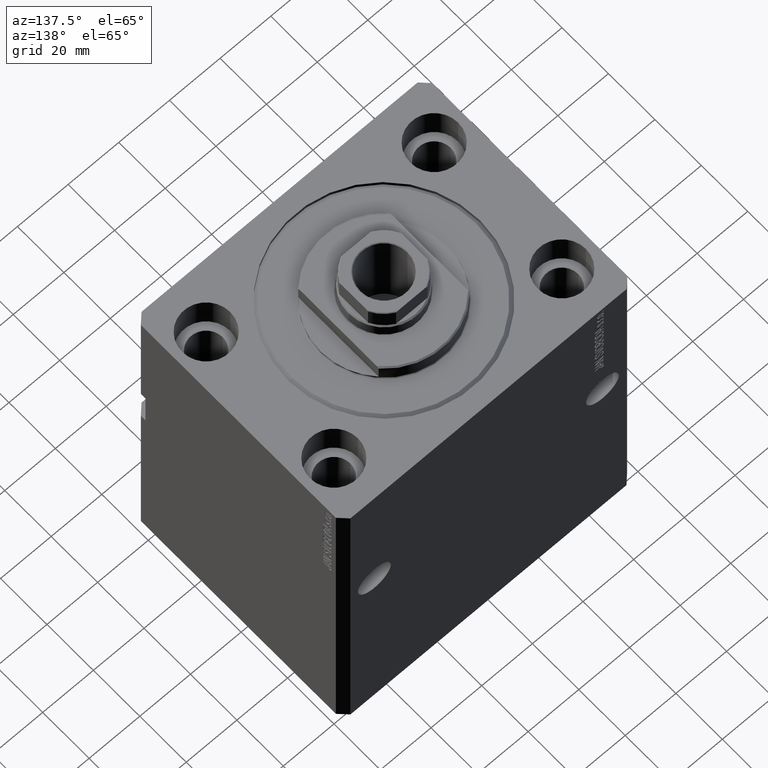
[diagram: clean part render]
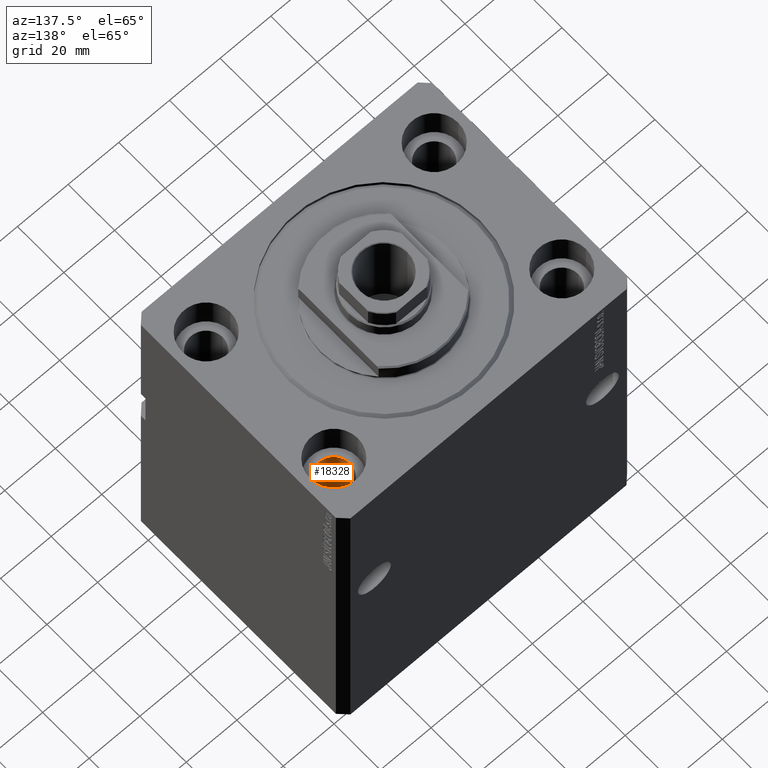
[diagram: same view with one face highlighted and labeled with its STEP entity id]
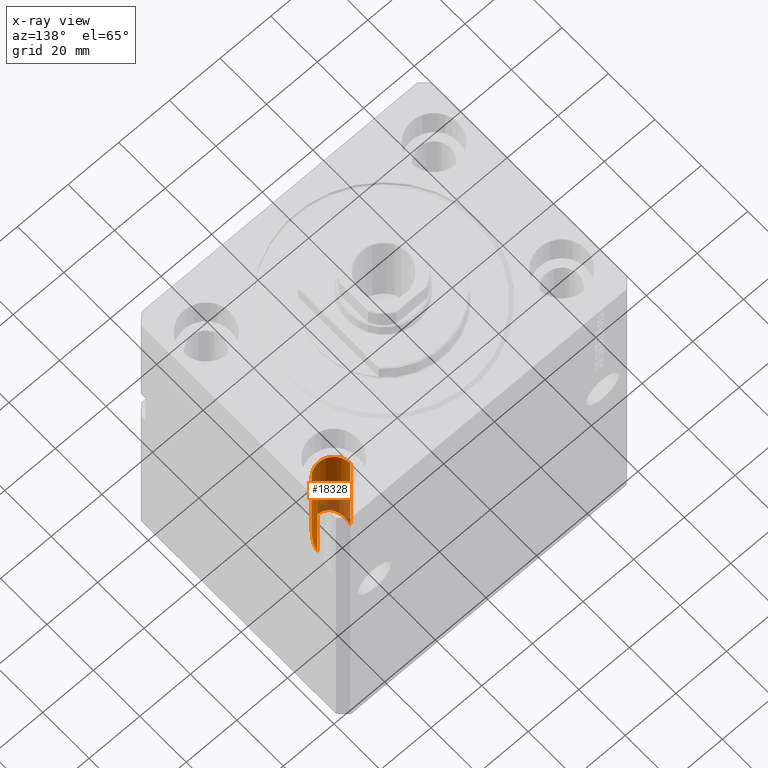
[diagram: x-ray of the same camera — body ghosted, the highlighted face saturated]
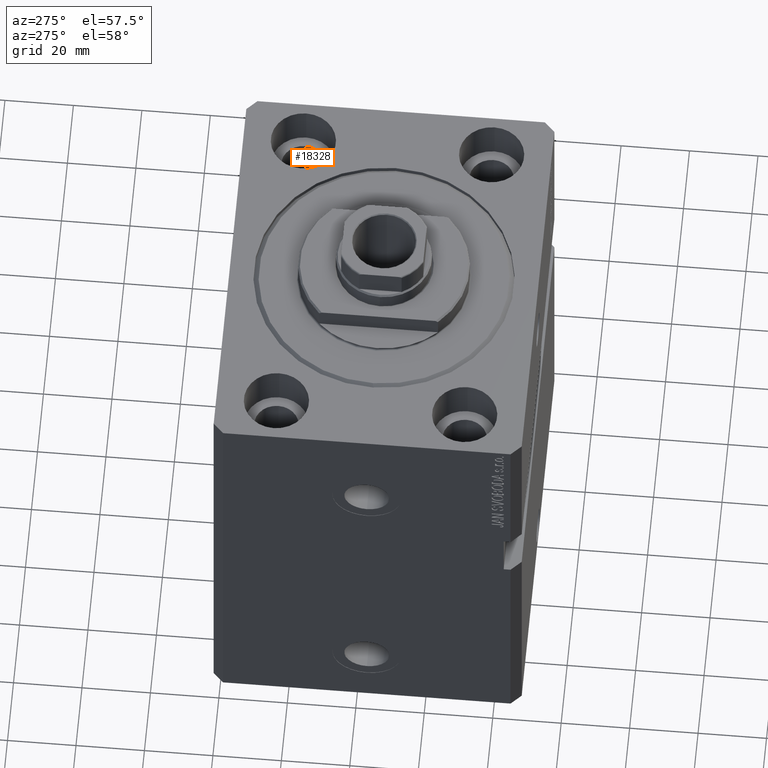
[diagram: same view with one face highlighted and labeled with its STEP entity id]
A machine part, auxiliary view. The second image highlights one B-rep face of the part: STEP entity #18328.
The next image is the same camera in x-ray: the body ghosted, the highlighted face saturated — about 42% of this face is hidden behind the body in this view.
A second angle (auxiliary view) of the same face is appended — the face is thin or edge-on in the first view.
In plain terms, the highlighted cylindrical surface (edge-blend (fillet) strip) has radius 6.5 mm, axis along (0, 0, 1).
Its self-contained STEP definition (entity closure, byte-faithful):
#2039 = DIRECTION ( 'NONE',  ( -0.000000000000000000, -0.000000000000000000, 1.000000000000000000 ) ) ;
#3308 = CARTESIAN_POINT ( 'NONE',  ( 38.50000000000000000, 27.50000000000001776, -54.99999999999999289 ) ) ;
#3741 = DIRECTION ( 'NONE',  ( -0.000000000000000000, -0.000000000000000000, 1.000000000000000000 ) ) ;
#7520 = CARTESIAN_POINT ( 'NONE',  ( 51.50000000000000000, 27.50000000000001776, -13.00000000000000000 ) ) ;
#7680 = CARTESIAN_POINT ( 'NONE',  ( 51.50000000000000000, 27.50000000000001776, -135.0000000000000000 ) ) ;
#9219 = LINE ( 'NONE', #20377, #45666 ) ;
#12907 = ORIENTED_EDGE ( 'NONE', *, *, #15079, .T. ) ;
#13828 = DIRECTION ( 'NONE',  ( 1.000000000000000000, 0.000000000000000000, 0.000000000000000000 ) ) ;
#14435 = CIRCLE ( 'NONE', #45588, 6.499999999999999112 ) ;
#14479 = VECTOR ( 'NONE', #3741, 1000.000000000000000 ) ;
#15079 = EDGE_CURVE ( 'NONE', #41758, #42228, #30329, .T. ) ;
#16613 = CARTESIAN_POINT ( 'NONE',  ( 45.00000000000000000, 27.50000000000001776, -135.0000000000000000 ) ) ;
#17655 = CARTESIAN_POINT ( 'NONE',  ( 38.50000000000000000, 27.50000000000001776, -54.99999999999999289 ) ) ;
#17882 = VERTEX_POINT ( 'NONE', #40138 ) ;
#18328 = ADVANCED_FACE ( 'NONE', ( #38205 ), #45635, .F. ) ;
#18357 = EDGE_LOOP ( 'NONE', ( #12907, #24084, #27696, #25020 ) ) ;
#19538 = EDGE_CURVE ( 'NONE', #17882, #39715, #14435, .T. ) ;
#20377 = CARTESIAN_POINT ( 'NONE',  ( 38.50000000000000000, 27.50000000000001776, -135.0000000000000000 ) ) ;
#20475 = DIRECTION ( 'NONE',  ( 0.000000000000000000, 0.000000000000000000, 1.000000000000000000 ) ) ;
#21088 = CARTESIAN_POINT ( 'NONE',  ( 51.50000000000000000, 27.50000000000001776, -54.99999999999999289 ) ) ;
#24084 = ORIENTED_EDGE ( 'NONE', *, *, #38353, .T. ) ;
#25020 = ORIENTED_EDGE ( 'NONE', *, *, #37299, .F. ) ;
#27696 = ORIENTED_EDGE ( 'NONE', *, *, #19538, .T. ) ;
#29501 = DIRECTION ( 'NONE',  ( 1.000000000000000000, 0.000000000000000000, 0.000000000000000000 ) ) ;
#30329 =( BOUNDED_CURVE ( )  B_SPLINE_CURVE ( 3, ( #41782, #45741, #32037, #17655 ),
 .UNSPECIFIED., .F., .F. ) 
 B_SPLINE_CURVE_WITH_KNOTS ( ( 4, 4 ),
 ( 4.712388980384689674, 7.853981633974482790 ),
 .UNSPECIFIED. ) 
 CURVE ( )  GEOMETRIC_REPRESENTATION_ITEM ( )  RATIONAL_B_SPLINE_CURVE ( ( 1.000000000000000000, 0.3333333333333333703, 0.3333333333333333703, 1.000000000000000000 ) ) 
 REPRESENTATION_ITEM ( '' )  );
#30776 = DIRECTION ( 'NONE',  ( -0.000000000000000000, -0.000000000000000000, 1.000000000000000000 ) ) ;
#32037 = CARTESIAN_POINT ( 'NONE',  ( 38.49999999999999289, 14.50000000000001954, -41.99999999999999289 ) ) ;
#37299 = EDGE_CURVE ( 'NONE', #41758, #39715, #39494, .T. ) ;
#38205 = FACE_OUTER_BOUND ( 'NONE', #18357, .T. ) ;
#38353 = EDGE_CURVE ( 'NONE', #42228, #17882, #9219, .T. ) ;
#39494 = LINE ( 'NONE', #7680, #14479 ) ;
#39715 = VERTEX_POINT ( 'NONE', #7520 ) ;
#40138 = CARTESIAN_POINT ( 'NONE',  ( 38.50000000000000000, 27.50000000000001776, -13.00000000000000000 ) ) ;
#41098 = AXIS2_PLACEMENT_3D ( 'NONE', #16613, #30776, #13828 ) ;
#41573 = CARTESIAN_POINT ( 'NONE',  ( 45.00000000000000000, 27.50000000000001776, -13.00000000000000000 ) ) ;
#41758 = VERTEX_POINT ( 'NONE', #21088 ) ;
#41782 = CARTESIAN_POINT ( 'NONE',  ( 51.50000000000000000, 27.50000000000001776, -54.99999999999999289 ) ) ;
#42228 = VERTEX_POINT ( 'NONE', #3308 ) ;
#45588 = AXIS2_PLACEMENT_3D ( 'NONE', #41573, #20475, #29501 ) ;
#45635 = CYLINDRICAL_SURFACE ( 'NONE', #41098, 6.499999999999999112 ) ;
#45666 = VECTOR ( 'NONE', #2039, 1000.000000000000000 ) ;
#45741 = CARTESIAN_POINT ( 'NONE',  ( 51.50000000000000711, 14.50000000000002487, -41.99999999999999289 ) ) ;